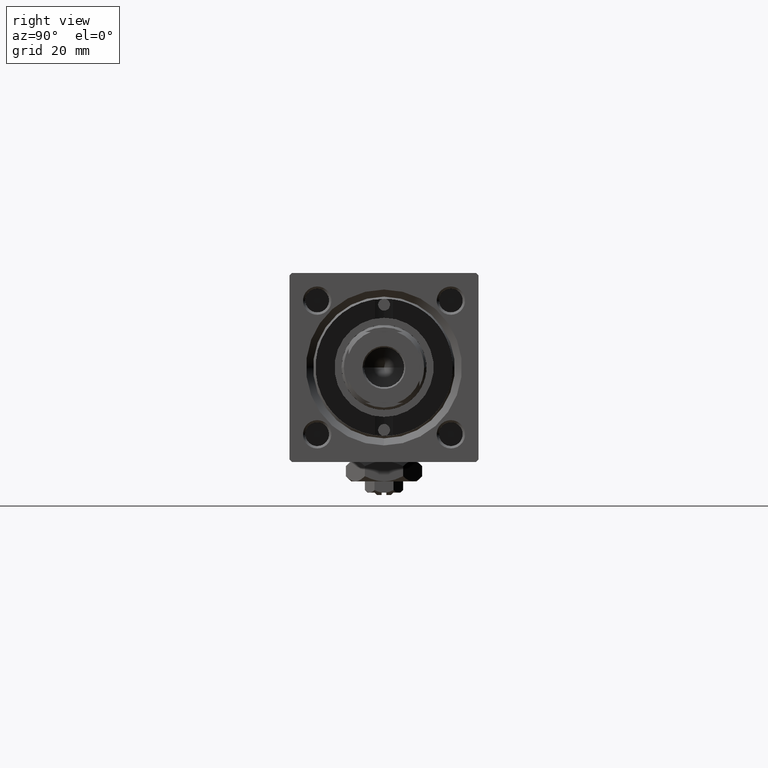
[diagram: clean part render]
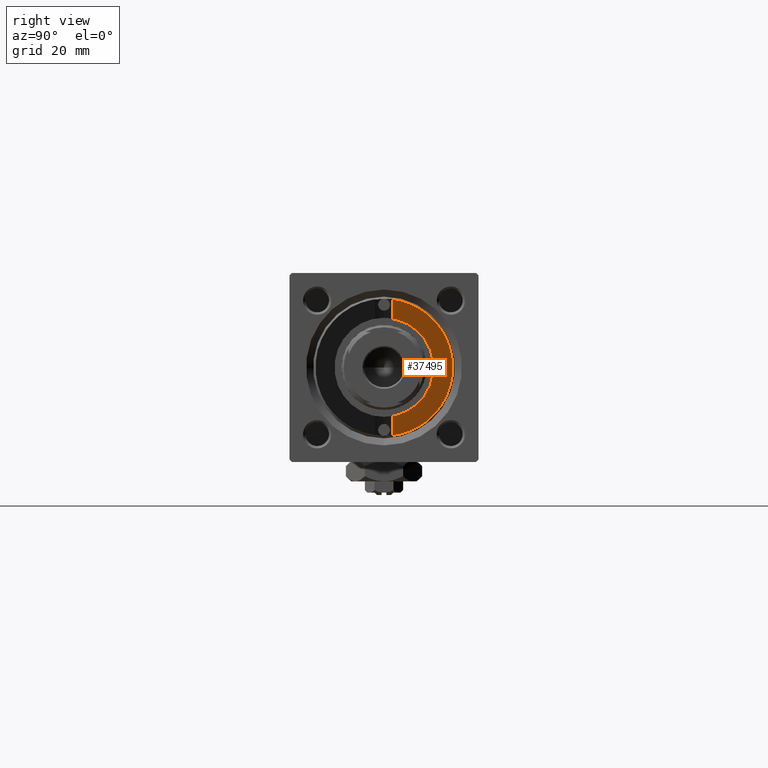
[diagram: same view with one face highlighted and labeled with its STEP entity id]
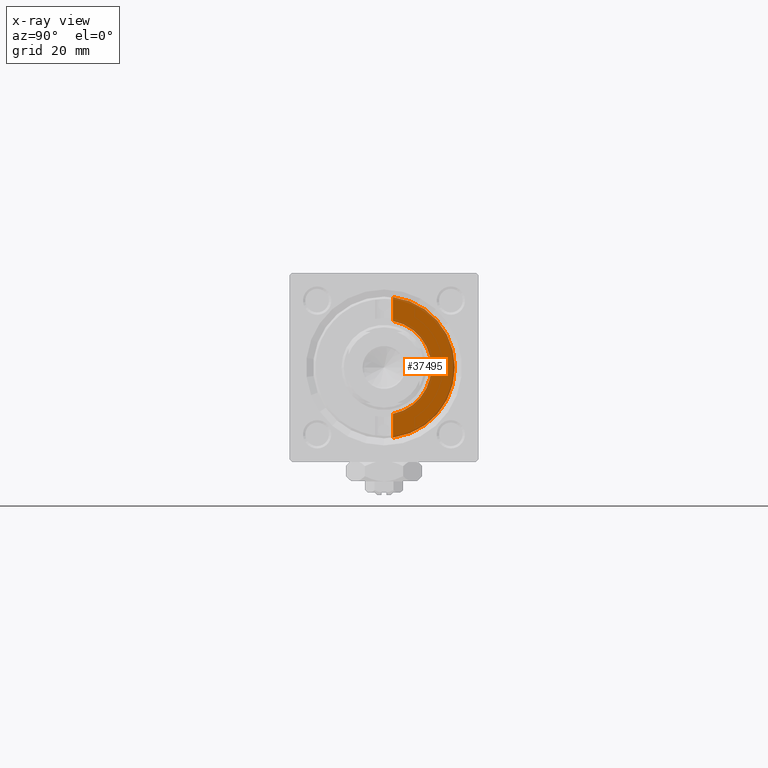
[diagram: x-ray of the same camera — body ghosted, the highlighted face saturated]
A machine part, right view. The second image highlights one B-rep face of the part: STEP entity #37495.
The next image is the same camera in x-ray: the body ghosted, the highlighted face saturated — about 18% of this face is hidden behind the body in this view.
In plain terms, the highlighted planar face has unit normal (1, 0, 0).
Its self-contained STEP definition (entity closure, byte-faithful):
#2976 = CIRCLE ( 'NONE', #8896, 15.00000000000000000 ) ;
#3915 = VERTEX_POINT ( 'NONE', #12962 ) ;
#4804 = ORIENTED_EDGE ( 'NONE', *, *, #26166, .F. ) ;
#6045 = DIRECTION ( 'NONE',  ( 0.000000000000000000, 0.000000000000000000, -1.000000000000000000 ) ) ;
#6501 = DIRECTION ( 'NONE',  ( 1.000000000000000000, 0.000000000000000000, 0.000000000000000000 ) ) ;
#8696 = EDGE_CURVE ( 'NONE', #3915, #31416, #32867, .T. ) ;
#8896 = AXIS2_PLACEMENT_3D ( 'NONE', #34834, #10018, #6045 ) ;
#10018 = DIRECTION ( 'NONE',  ( 1.000000000000000000, 0.000000000000000000, 0.000000000000000000 ) ) ;
#10734 = DIRECTION ( 'NONE',  ( 0.000000000000000000, 0.000000000000000000, -1.000000000000000000 ) ) ;
#12470 = VERTEX_POINT ( 'NONE', #37717 ) ;
#12962 = CARTESIAN_POINT ( 'NONE',  ( 90.30000000000001137, 1.899052395275083960, -9.818024241159722720 ) ) ;
#14296 = DIRECTION ( 'NONE',  ( 1.000000000000000000, 0.000000000000000000, 0.000000000000000000 ) ) ;
#18071 = ORIENTED_EDGE ( 'NONE', *, *, #26836, .T. ) ;
#21517 = LINE ( 'NONE', #49770, #44324 ) ;
#26072 = PLANE ( 'NONE',  #48705 ) ;
#26166 = EDGE_CURVE ( 'NONE', #41754, #3915, #21517, .T. ) ;
#26421 = EDGE_CURVE ( 'NONE', #41754, #12470, #2976, .T. ) ;
#26694 = DIRECTION ( 'NONE',  ( 0.000000000000000000, 0.000000000000000000, -1.000000000000000000 ) ) ;
#26836 = EDGE_CURVE ( 'NONE', #12470, #31416, #29768, .T. ) ;
#29697 = DIRECTION ( 'NONE',  ( 0.000000000000000000, 0.000000000000000000, 1.000000000000000000 ) ) ;
#29768 = LINE ( 'NONE', #42449, #44372 ) ;
#30920 = CARTESIAN_POINT ( 'NONE',  ( 90.30000000000001137, 0.000000000000000000, 0.000000000000000000 ) ) ;
#31416 = VERTEX_POINT ( 'NONE', #39840 ) ;
#32068 = EDGE_LOOP ( 'NONE', ( #4804, #44610, #18071, #42674 ) ) ;
#32867 = CIRCLE ( 'NONE', #38774, 9.999999999999998224 ) ;
#34834 = CARTESIAN_POINT ( 'NONE',  ( 90.30000000000001137, 0.000000000000000000, 0.000000000000000000 ) ) ;
#37495 = ADVANCED_FACE ( 'NONE', ( #46153 ), #26072, .T. ) ;
#37717 = CARTESIAN_POINT ( 'NONE',  ( 90.30000000000001137, 1.899052395280416805, 14.87930105885285670 ) ) ;
#37989 = CARTESIAN_POINT ( 'NONE',  ( 90.30000000000001137, 1.899052395275083960, -14.87930105885353527 ) ) ;
#38774 = AXIS2_PLACEMENT_3D ( 'NONE', #30920, #14296, #26694 ) ;
#39006 = CARTESIAN_POINT ( 'NONE',  ( 90.30000000000001137, 0.000000000000000000, 0.000000000000000000 ) ) ;
#39840 = CARTESIAN_POINT ( 'NONE',  ( 90.30000000000001137, 1.899052395280416805, 9.818024241158690657 ) ) ;
#41754 = VERTEX_POINT ( 'NONE', #37989 ) ;
#41929 = DIRECTION ( 'NONE',  ( 0.000000000000000000, 0.000000000000000000, -1.000000000000000000 ) ) ;
#42449 = CARTESIAN_POINT ( 'NONE',  ( 90.30000000000001137, 1.899052395280416805, 42.80000000000000426 ) ) ;
#42674 = ORIENTED_EDGE ( 'NONE', *, *, #8696, .F. ) ;
#44324 = VECTOR ( 'NONE', #29697, 1000.000000000000000 ) ;
#44372 = VECTOR ( 'NONE', #10734, 1000.000000000000000 ) ;
#44610 = ORIENTED_EDGE ( 'NONE', *, *, #26421, .T. ) ;
#46153 = FACE_OUTER_BOUND ( 'NONE', #32068, .T. ) ;
#48705 = AXIS2_PLACEMENT_3D ( 'NONE', #39006, #6501, #41929 ) ;
#49770 = CARTESIAN_POINT ( 'NONE',  ( 90.30000000000001137, 1.899052395275083960, 20.00100000000001543 ) ) ;